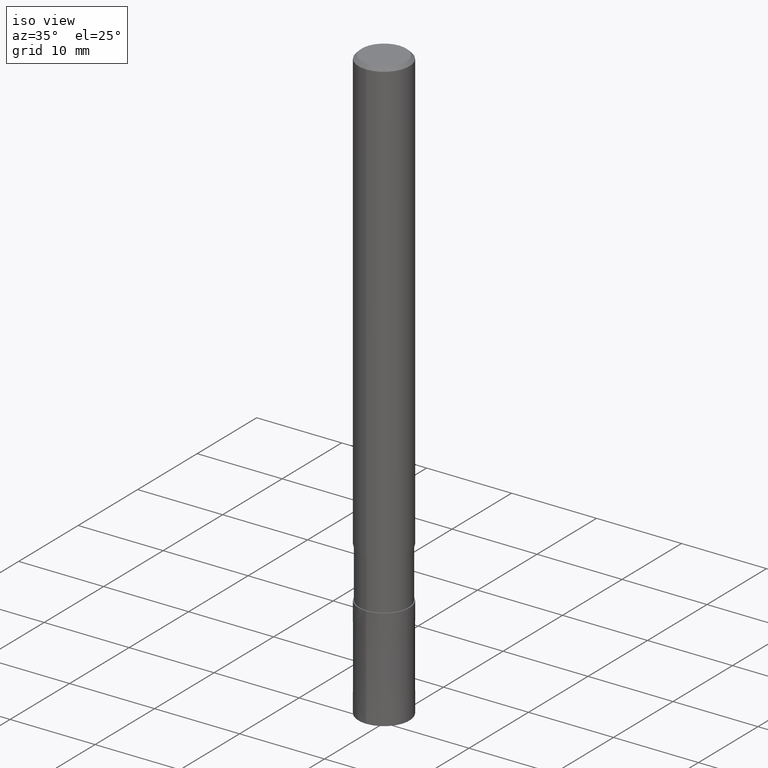
[diagram: clean part render]
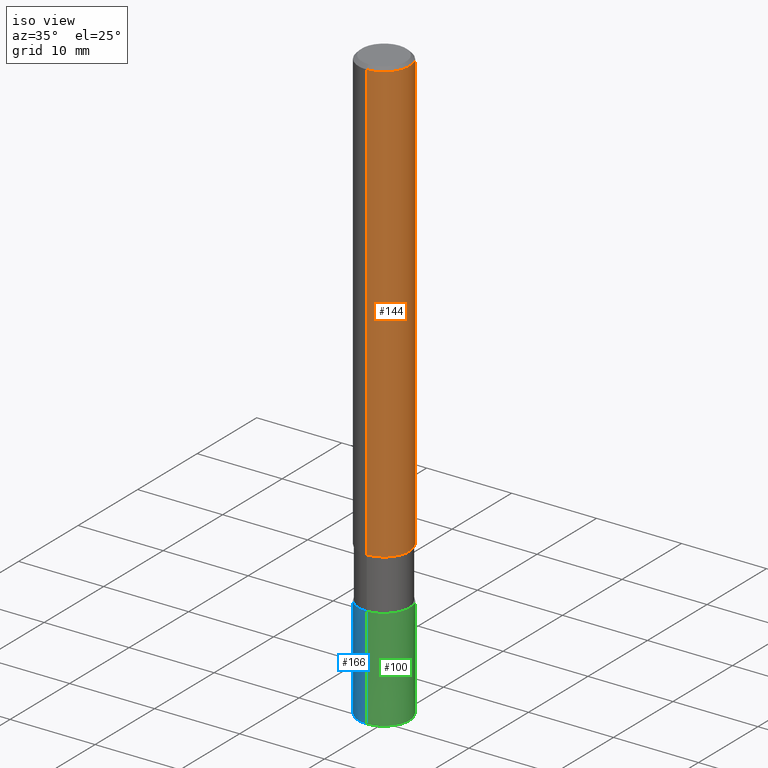
[diagram: same view with three faces highlighted in distinct colors, each labeled with its STEP entity id]
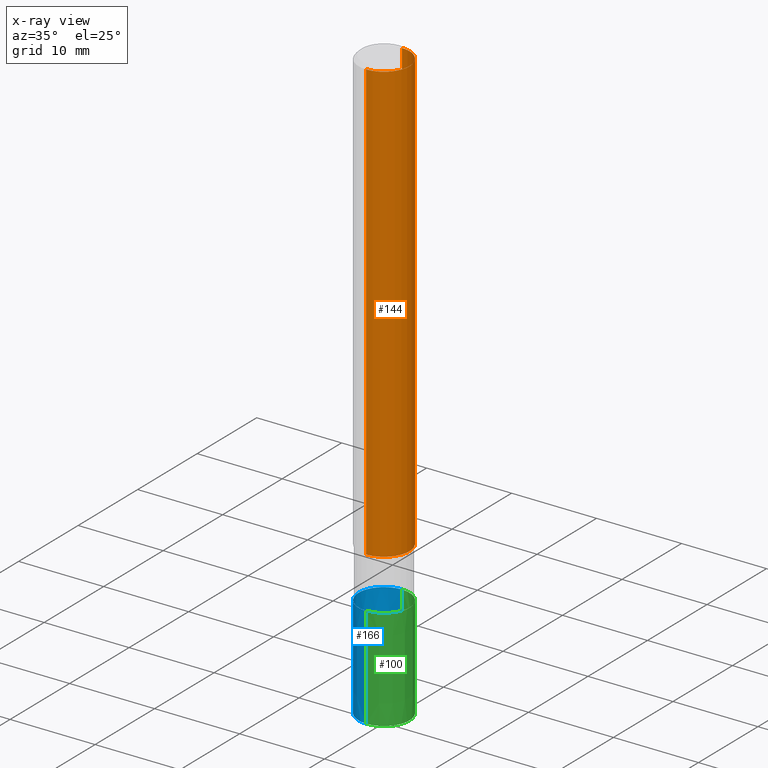
[diagram: x-ray of the same camera — body ghosted, the three highlighted faces saturated]
A machine part, iso view with three faces highlighted in distinct colors.
The next image is the same camera in x-ray (body ghosted, the three faces saturated) — at least one of them is partly hidden behind the body in this view.
Their STEP definitions:

[orange] entity #144 — the highlighted cylindrical surface (edge-blend (fillet) strip) has radius 3 mm, axis along (-0, -0, 1).
#96=EDGE_CURVE('',#110,#134,#220,.T.);
#98=EDGE_CURVE('',#140,#118,#222,.T.);
#110=VERTEX_POINT('',#236);
#118=VERTEX_POINT('',#245);
#120=EDGE_CURVE('',#118,#134,#247,.T.);
#134=VERTEX_POINT('',#262);
#140=VERTEX_POINT('',#268);
#144=ADVANCED_FACE('',(#272),#273,.T.);
#148=EDGE_CURVE('',#110,#140,#277,.T.);
#220=CIRCLE('',#351,3.0);
#222=CIRCLE('',#354,3.0);
#236=CARTESIAN_POINT('',(0.0,3.0,-0.399999999999999));
#245=CARTESIAN_POINT('',(3.67381906146713E-016,-3.0,-52.0));
#247=LINE('',#384,#385);
#262=CARTESIAN_POINT('',(3.67381906146713E-016,-3.0,-0.399999999999999));
#268=CARTESIAN_POINT('',(0.0,3.0,-52.0));
#272=FACE_OUTER_BOUND('',#417,.T.);
#273=CYLINDRICAL_SURFACE('',#418,3.0);
#277=LINE('',#423,#424);
#351=AXIS2_PLACEMENT_3D('',#507,#508,#509);
#354=AXIS2_PLACEMENT_3D('',#510,#511,#512);
#384=CARTESIAN_POINT('',(3.67381906146713E-016,-3.0,-26.2));
#385=VECTOR('',#542,1.0);
#417=EDGE_LOOP('',(#563,#564,#565,#566));
#418=AXIS2_PLACEMENT_3D('',#567,#568,#569);
#423=CARTESIAN_POINT('',(-3.67381906146713E-016,3.0,-26.2));
#424=VECTOR('',#570,1.0);
#507=CARTESIAN_POINT('',(0.0,0.0,-0.399999999999999));
#508=DIRECTION('',(0.0,0.0,-1.0));
#509=DIRECTION('',(0.0,1.0,0.0));
#510=CARTESIAN_POINT('',(0.0,0.0,-52.0));
#511=DIRECTION('',(0.0,0.0,-1.0));
#512=DIRECTION('',(0.0,1.0,0.0));
#542=DIRECTION('',(-0.0,-0.0,1.0));
#563=ORIENTED_EDGE('',*,*,#148,.F.);
#564=ORIENTED_EDGE('',*,*,#96,.T.);
#565=ORIENTED_EDGE('',*,*,#120,.F.);
#566=ORIENTED_EDGE('',*,*,#98,.F.);
#567=CARTESIAN_POINT('',(0.0,0.0,-26.2));
#568=DIRECTION('',(-0.0,-0.0,1.0));
#569=DIRECTION('',(0.0,1.0,0.0));
#570=DIRECTION('',(0.0,0.0,-1.0));

[blue] entity #166 — the highlighted conical surface has half-angle 0 deg.
#92=EDGE_CURVE('',#176,#142,#216,.T.);
#108=VERTEX_POINT('',#234);
#114=EDGE_CURVE('',#108,#176,#241,.T.);
#126=EDGE_CURVE('',#108,#180,#253,.T.);
#136=EDGE_CURVE('',#142,#180,#264,.T.);
#142=VERTEX_POINT('',#270);
#166=ADVANCED_FACE('',(#299),#300,.T.);
#176=VERTEX_POINT('',#311);
#180=VERTEX_POINT('',#315);
#216=CIRCLE('',#345,2.9999);
#234=CARTESIAN_POINT('',(3.67381906146713E-016,-3.0,-70.0));
#241=LINE('',#375,#376);
#253=CIRCLE('',#393,3.0);
#264=LINE('',#406,#407);
#270=CARTESIAN_POINT('',(0.0,2.9999,-58.0));
#299=FACE_OUTER_BOUND('',#452,.T.);
#300=CONICAL_SURFACE('',#453,2.99995,8.33333333315802E-006);
#311=CARTESIAN_POINT('',(3.67369660083175E-016,-2.9999,-58.0));
#315=CARTESIAN_POINT('',(0.0,3.0,-70.0));
#345=AXIS2_PLACEMENT_3D('',#501,#502,#503);
#375=CARTESIAN_POINT('',(3.67375783114944E-016,-2.99995,-64.0));
#376=VECTOR('',#538,1.0);
#393=AXIS2_PLACEMENT_3D('',#546,#547,#548);
#406=CARTESIAN_POINT('',(-3.67375783114944E-016,2.99995,-64.0));
#407=VECTOR('',#560,1.0);
#452=EDGE_LOOP('',(#602,#603,#604,#605));
#453=AXIS2_PLACEMENT_3D('',#606,#607,#608);
#501=CARTESIAN_POINT('',(0.0,0.0,-58.0));
#502=DIRECTION('',(0.0,0.0,-1.0));
#503=DIRECTION('',(0.0,1.0,0.0));
#538=DIRECTION('',(-1.0205052948187E-021,8.33333333306157E-006,0.999999999965278));
#546=CARTESIAN_POINT('',(0.0,0.0,-70.0));
#547=DIRECTION('',(0.0,0.0,-1.0));
#548=DIRECTION('',(0.0,1.0,0.0));
#560=DIRECTION('',(-1.0205052948187E-021,8.33333333306157E-006,-0.999999999965278));
#602=ORIENTED_EDGE('',*,*,#136,.T.);
#603=ORIENTED_EDGE('',*,*,#126,.F.);
#604=ORIENTED_EDGE('',*,*,#114,.T.);
#605=ORIENTED_EDGE('',*,*,#92,.T.);
#606=CARTESIAN_POINT('',(0.0,0.0,-64.0));
#607=DIRECTION('',(0.0,-0.0,-1.0));
#608=DIRECTION('',(0.0,1.0,0.0));

[green] entity #100 — the highlighted conical surface has half-angle 0 deg.
#100=ADVANCED_FACE('',(#224),#225,.T.);
#108=VERTEX_POINT('',#234);
#114=EDGE_CURVE('',#108,#176,#241,.T.);
#116=EDGE_CURVE('',#180,#108,#243,.T.);
#136=EDGE_CURVE('',#142,#180,#264,.T.);
#142=VERTEX_POINT('',#270);
#176=VERTEX_POINT('',#311);
#180=VERTEX_POINT('',#315);
#184=EDGE_CURVE('',#142,#176,#319,.T.);
#224=FACE_OUTER_BOUND('',#356,.T.);
#225=CONICAL_SURFACE('',#357,2.99995,8.33333333315802E-006);
#234=CARTESIAN_POINT('',(3.67381906146713E-016,-3.0,-70.0));
#241=LINE('',#375,#376);
#243=CIRCLE('',#379,3.0);
#264=LINE('',#406,#407);
#270=CARTESIAN_POINT('',(0.0,2.9999,-58.0));
#311=CARTESIAN_POINT('',(3.67369660083175E-016,-2.9999,-58.0));
#315=CARTESIAN_POINT('',(0.0,3.0,-70.0));
#319=CIRCLE('',#474,2.9999);
#356=EDGE_LOOP('',(#514,#515,#516,#517));
#357=AXIS2_PLACEMENT_3D('',#518,#519,#520);
#375=CARTESIAN_POINT('',(3.67375783114944E-016,-2.99995,-64.0));
#376=VECTOR('',#538,1.0);
#379=AXIS2_PLACEMENT_3D('',#539,#540,#541);
#406=CARTESIAN_POINT('',(-3.67375783114944E-016,2.99995,-64.0));
#407=VECTOR('',#560,1.0);
#474=AXIS2_PLACEMENT_3D('',#621,#622,#623);
#514=ORIENTED_EDGE('',*,*,#136,.F.);
#515=ORIENTED_EDGE('',*,*,#184,.T.);
#516=ORIENTED_EDGE('',*,*,#114,.F.);
#517=ORIENTED_EDGE('',*,*,#116,.F.);
#518=CARTESIAN_POINT('',(0.0,0.0,-64.0));
#519=DIRECTION('',(0.0,-0.0,-1.0));
#520=DIRECTION('',(0.0,1.0,0.0));
#538=DIRECTION('',(-1.0205052948187E-021,8.33333333306157E-006,0.999999999965278));
#539=CARTESIAN_POINT('',(0.0,0.0,-70.0));
#540=DIRECTION('',(0.0,0.0,-1.0));
#541=DIRECTION('',(0.0,1.0,0.0));
#560=DIRECTION('',(-1.0205052948187E-021,8.33333333306157E-006,-0.999999999965278));
#621=CARTESIAN_POINT('',(0.0,0.0,-58.0));
#622=DIRECTION('',(0.0,0.0,-1.0));
#623=DIRECTION('',(0.0,1.0,0.0));